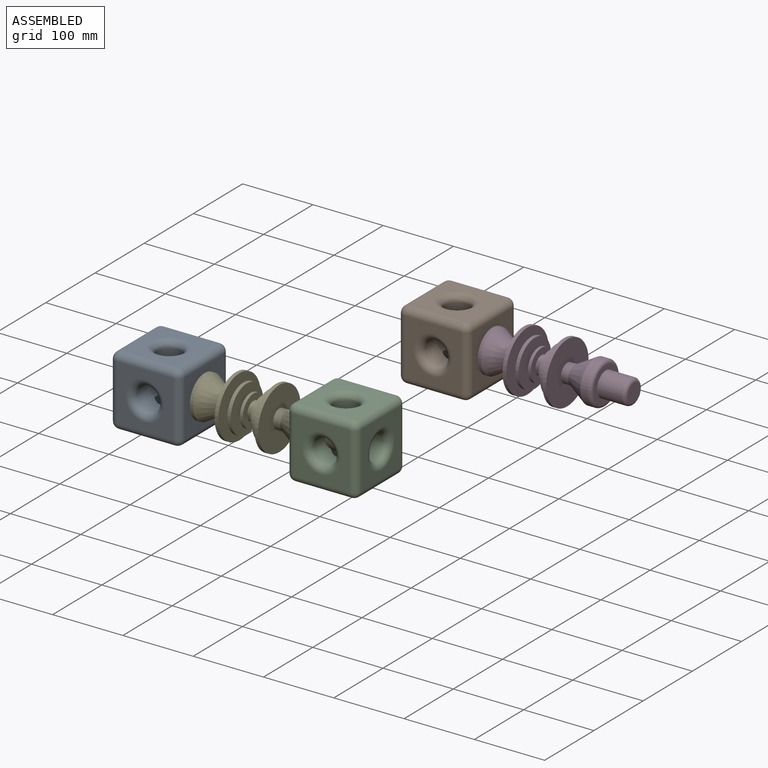
[diagram: assembled view]
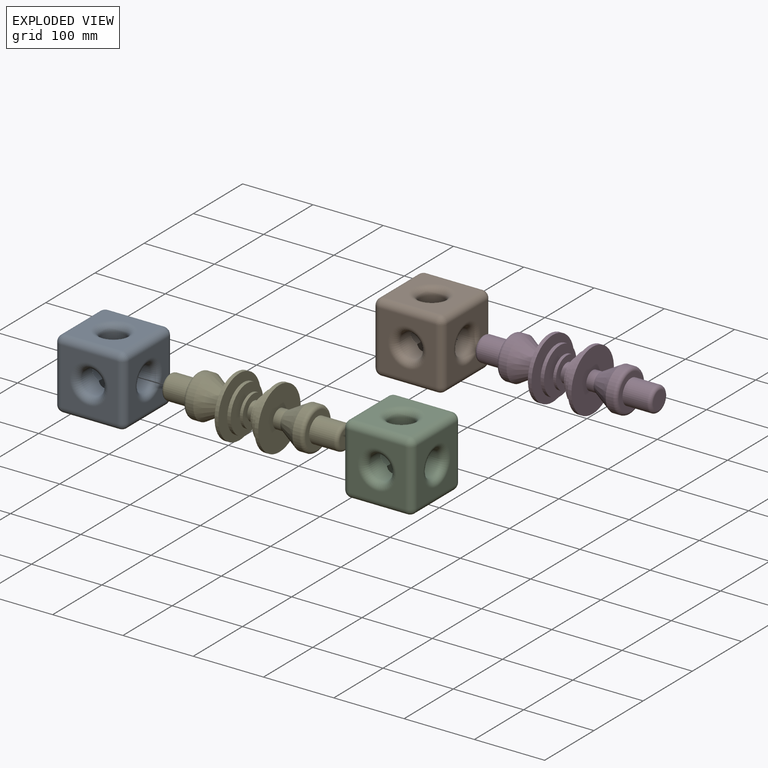
[diagram: exploded view]
GUIDED TOUR — MATED ASSEMBLY (Onshape document a964b16d7d74739e7f7de429, AutoMate assembly a964b16d7d74739e7f7de429_0553d04fbfba188f4434bdd7_2e98afebcec757936299c233_default)

This assembly has 5 components, labeled P0..P4 below (a component is one placed occurrence of a part; the same part can appear more than once), held together by 3 mates. A mate is a constraint between two components; its type names the relative motion it leaves free:
  FASTENED — locks the two components together rigidly (no relative motion).
Axis/direction vectors are unit vectors and 'through' points are millimeter coordinates, both in the assembly's world frame.

MATES
  1. FASTENED "Fastened 1": P2 <-> P4, direction (1.000, 0.000, 0.000) through (-134.48, 2.32, 90.02) mm
  2. FASTENED "Fastened 2": P0 <-> P4, direction (-1.000, 0.000, 0.000) through (-305.66, 2.32, 90.02) mm
  3. FASTENED "Fastened 4": P1 <-> P3, direction (1.000, 0.000, 0.000) through (-232.92, 483.47, -15.53) mm

ASSEMBLY ORDER
  1. P4 — the base component [order heuristic]
  2. P0 [order heuristic]
  3. P1 [order heuristic]
  4. P2 [order heuristic]
  5. P3 [order heuristic]
Order-tag legend:
  [order heuristic] — this assembly is geometrically interlocked (no collision-free removal order exists), so components are listed in mate-graph order; insertion feasibility is not verified.

Of the 5 components, 2 carry the full construction recipe — the FeatureScript program that regenerates the part's solid from scratch; the rest are supplied as boundary geometry only.
Each toured component is shown spotlighted twice — in the assembled view, then in the exploded view, where a leader line traces a displaced component back to its assembled socket (saturated green if recipe-attached, orange if geometry-only; every other component desaturated gray) — followed by its recipe or geometry summary and the mates that hold it.
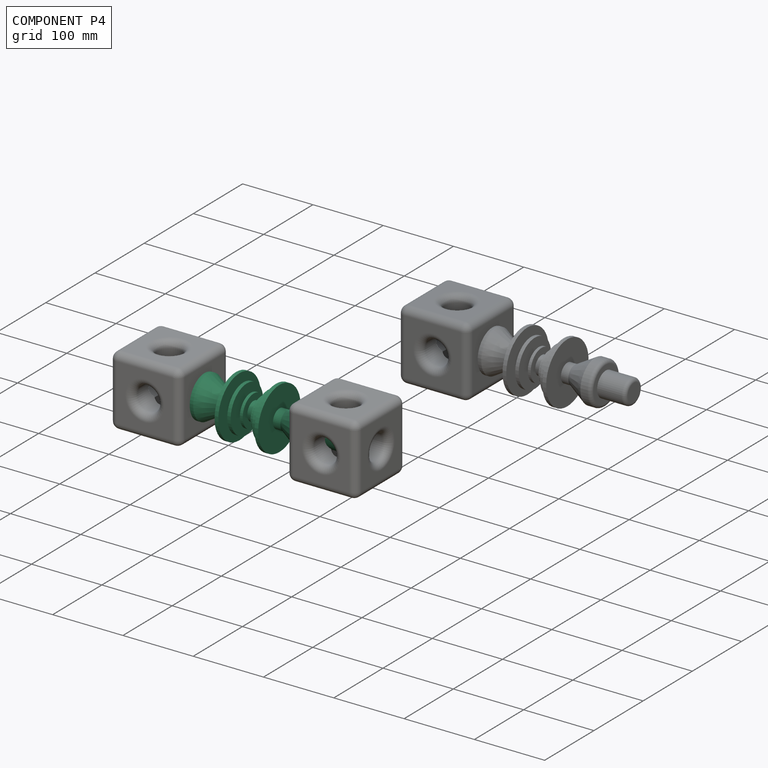
[diagram: component P4 — assembled]
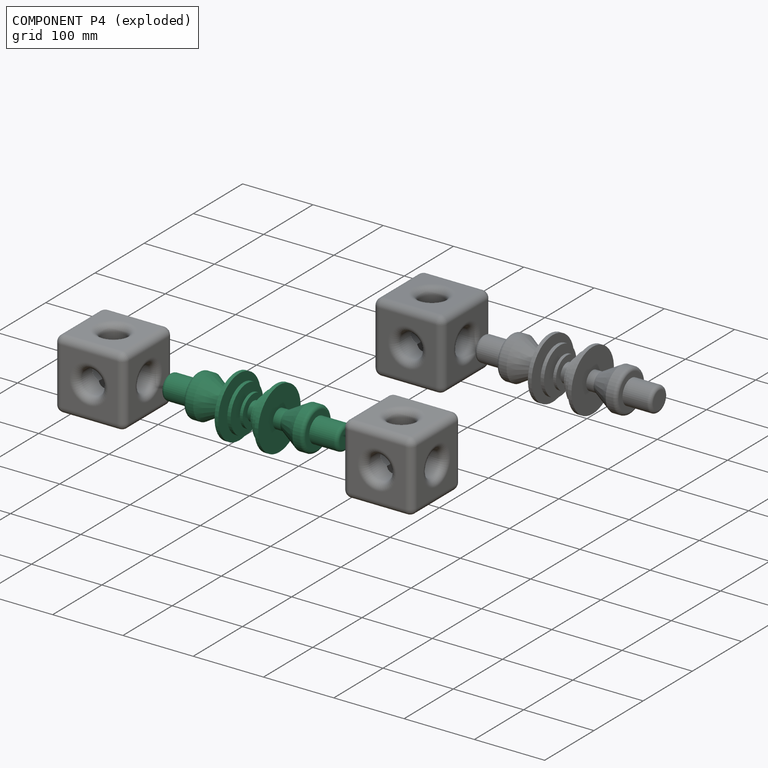
[diagram: component P4 — exploded]
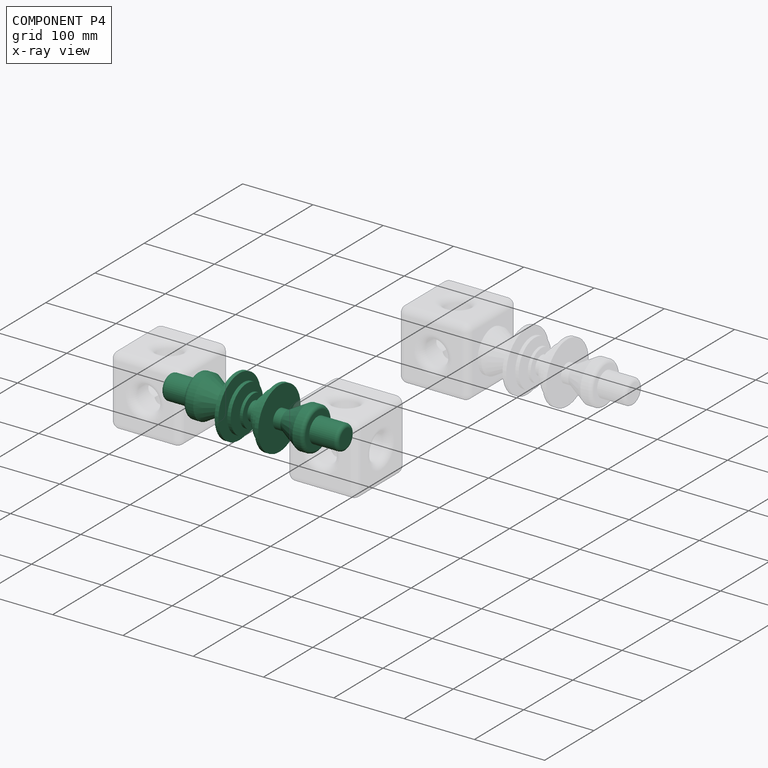
[diagram: component P4 — x-ray view]
COMPONENT P4 — same part as P3 (CADFS 00545659); its construction recipe is shown at P3.
Held by: FASTENED mate "Fastened 1" to P2; FASTENED mate "Fastened 2" to P0.
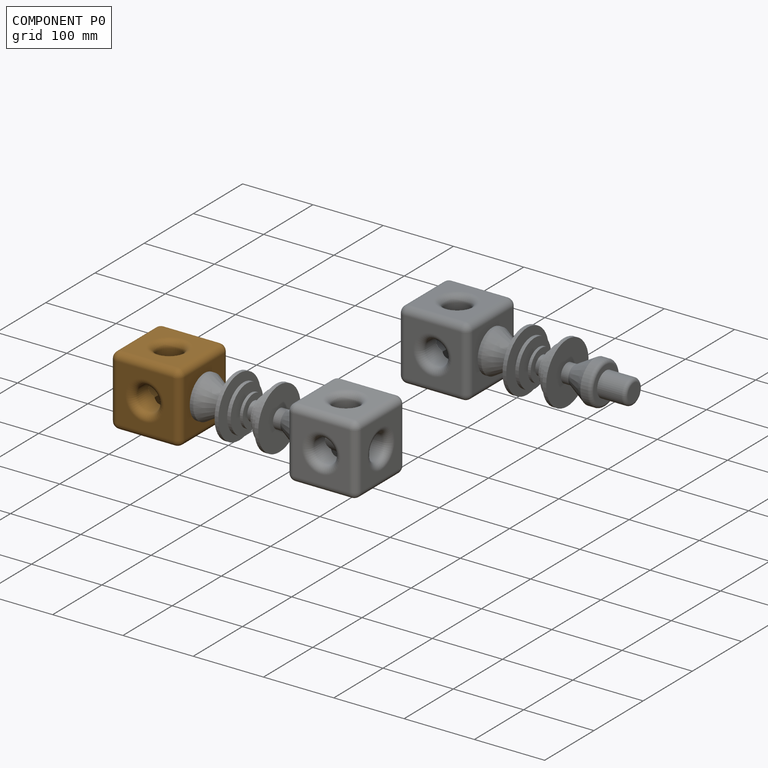
[diagram: component P0 — assembled]
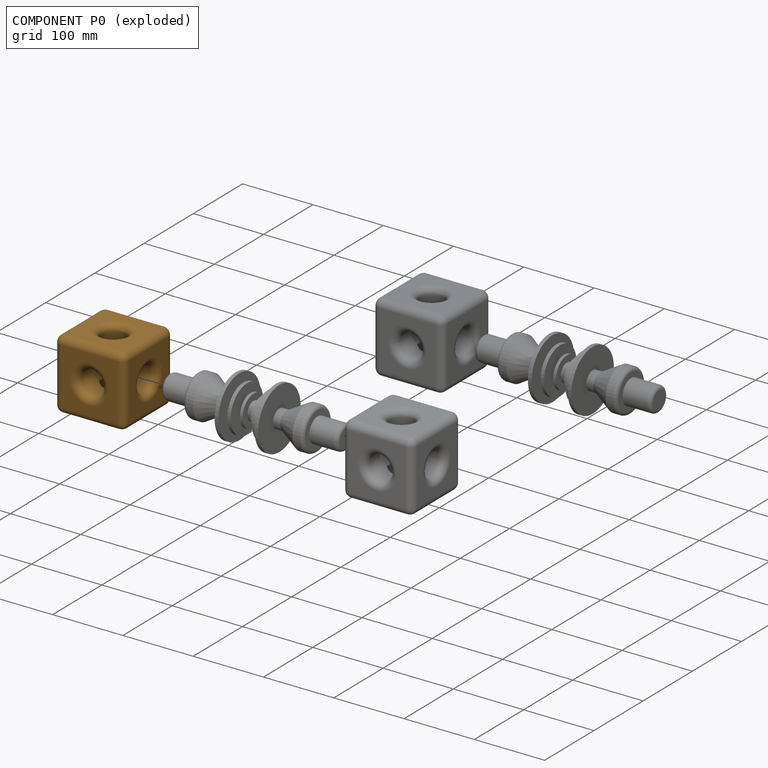
[diagram: component P0 — exploded]
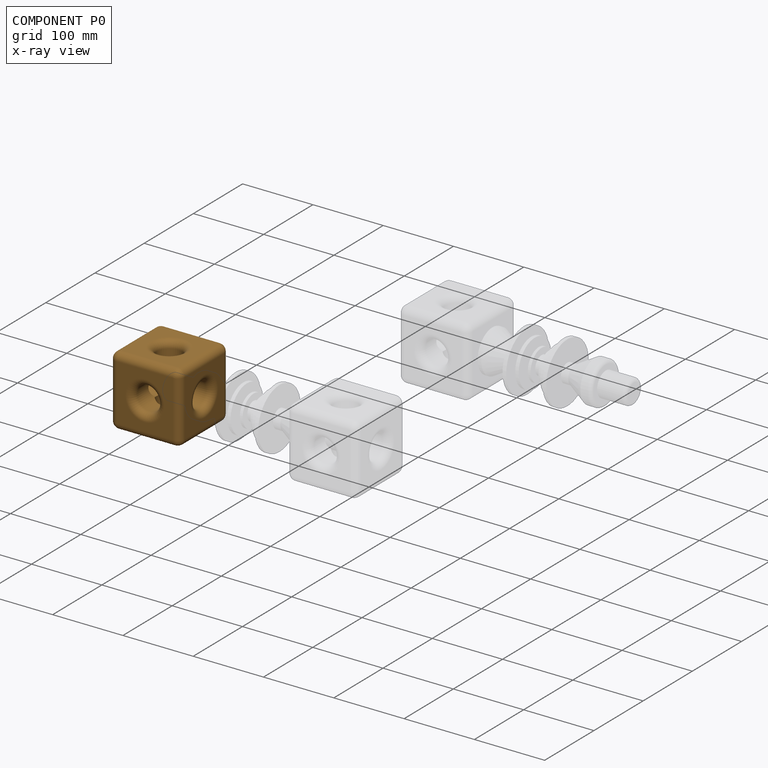
[diagram: component P0 — x-ray view]
COMPONENT P0 — geometry summary (no construction recipe available for this part):
  bounding box: 100.0 x 100.0 x 100.0 mm
  B-rep topology: 1 solid, 38 faces, 186 edges
  volume: 731622 mm^3 (73% of its bounding box)
  symmetry: 4-fold rotationally symmetric about the x axis; 4-fold rotationally symmetric about the y axis; 4-fold rotationally symmetric about the z axis; mirror-symmetric across its x mid-plane, y mid-plane, z mid-plane
Held by: FASTENED mate "Fastened 2" to P4.
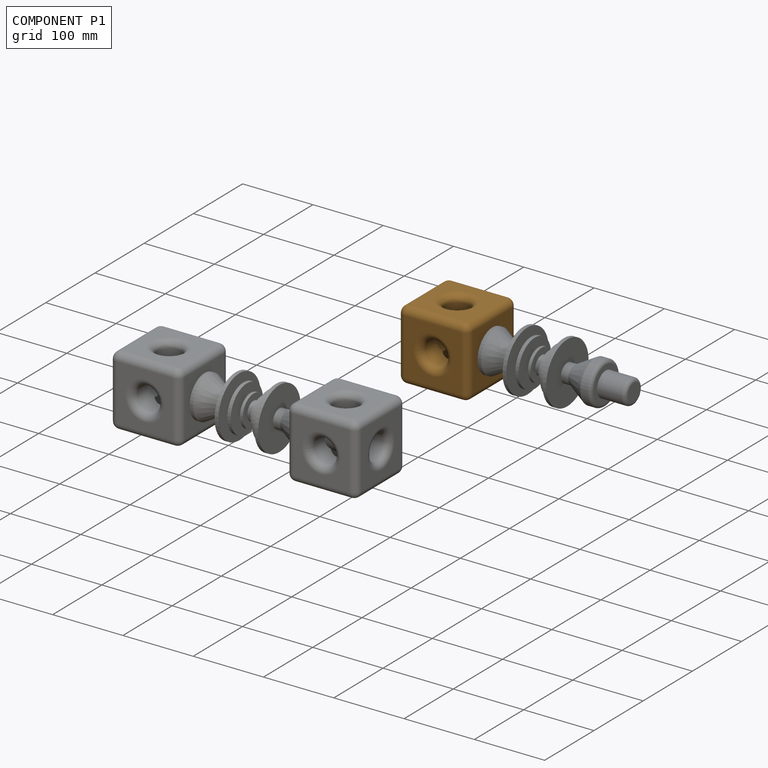
[diagram: component P1 — assembled]
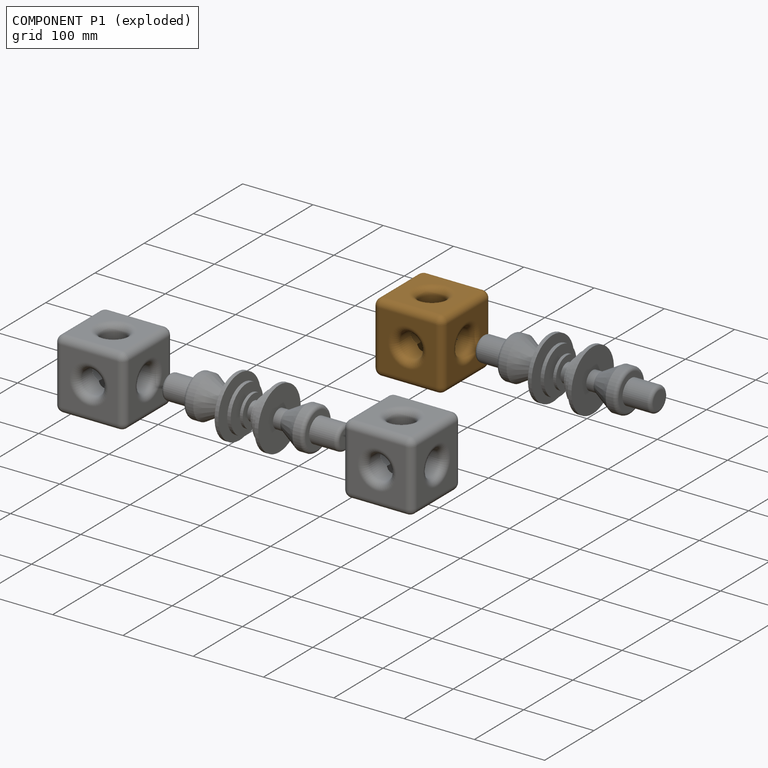
[diagram: component P1 — exploded]
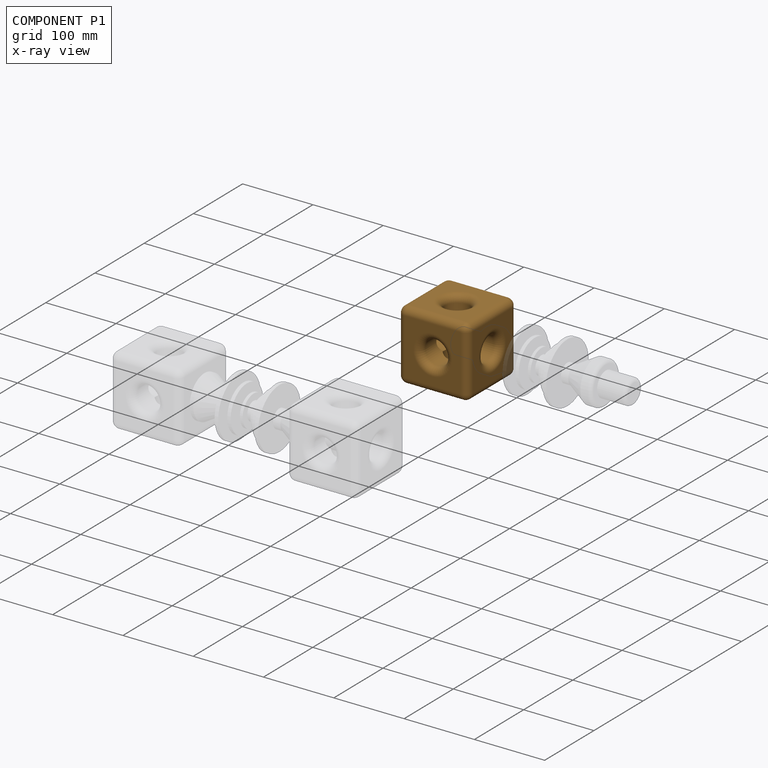
[diagram: component P1 — x-ray view]
COMPONENT P1 — geometry summary (no construction recipe available for this part):
  bounding box: 100.0 x 100.0 x 100.0 mm
  B-rep topology: 1 solid, 38 faces, 186 edges
  volume: 731622 mm^3 (73% of its bounding box)
  symmetry: 4-fold rotationally symmetric about the x axis; 4-fold rotationally symmetric about the y axis; 4-fold rotationally symmetric about the z axis; mirror-symmetric across its x mid-plane, y mid-plane, z mid-plane
Held by: FASTENED mate "Fastened 4" to P3.
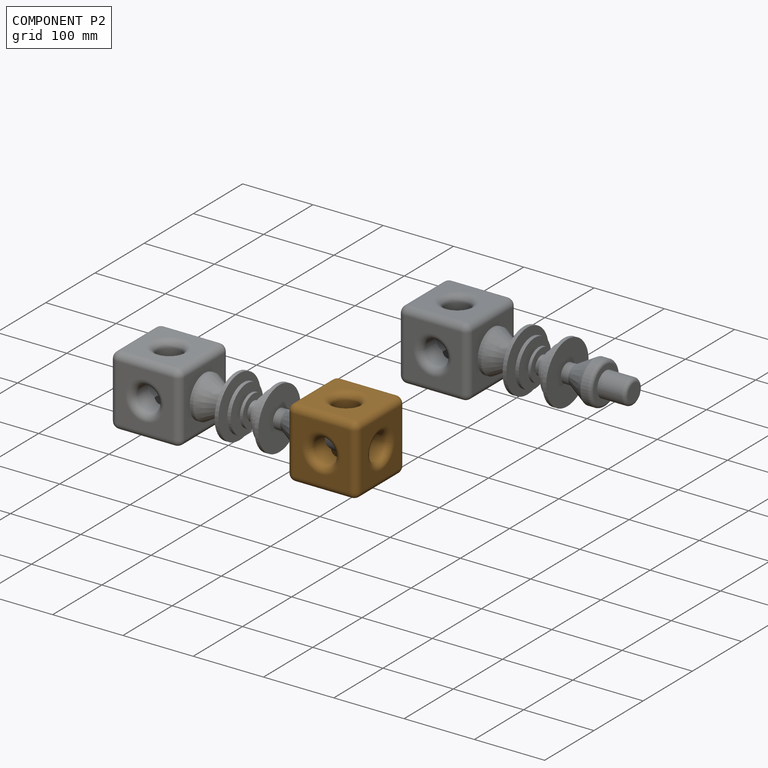
[diagram: component P2 — assembled]
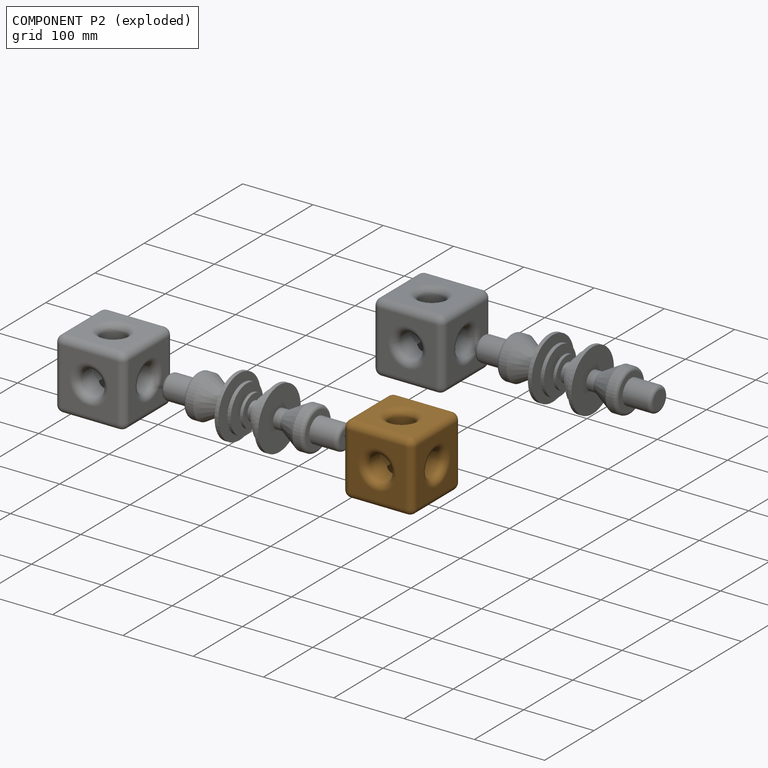
[diagram: component P2 — exploded]
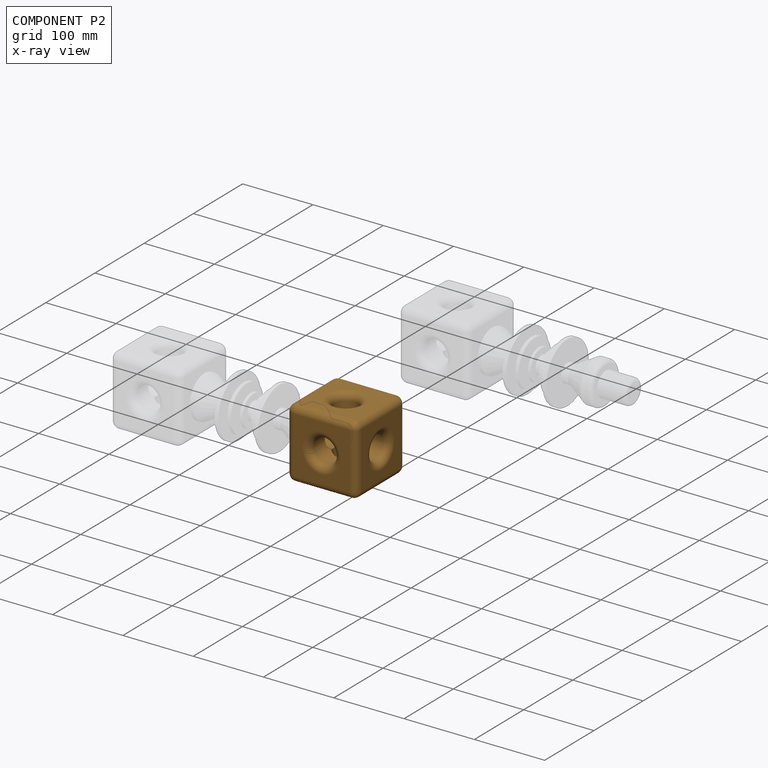
[diagram: component P2 — x-ray view]
COMPONENT P2 — geometry summary (no construction recipe available for this part):
  bounding box: 100.0 x 100.0 x 100.0 mm
  B-rep topology: 1 solid, 38 faces, 186 edges
  volume: 731622 mm^3 (73% of its bounding box)
  symmetry: 4-fold rotationally symmetric about the x axis; 4-fold rotationally symmetric about the y axis; 4-fold rotationally symmetric about the z axis; mirror-symmetric across its x mid-plane, y mid-plane, z mid-plane
Held by: FASTENED mate "Fastened 1" to P4.
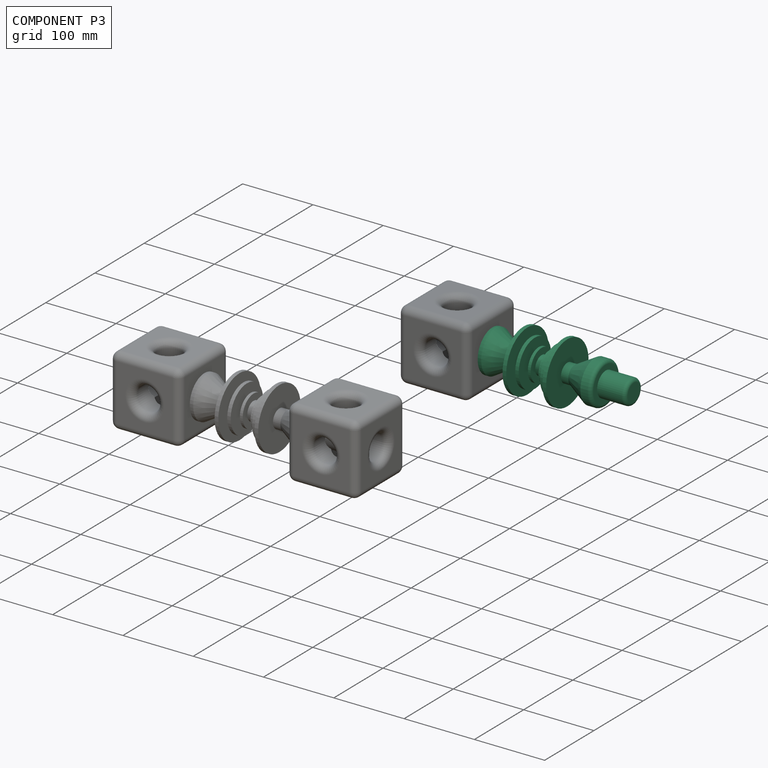
[diagram: component P3 — assembled]
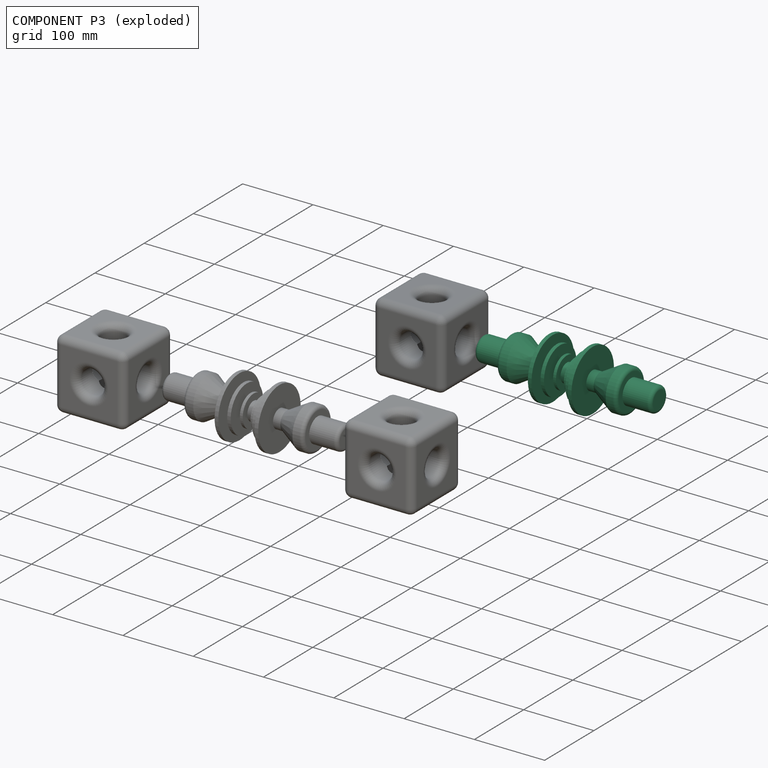
[diagram: component P3 — exploded]
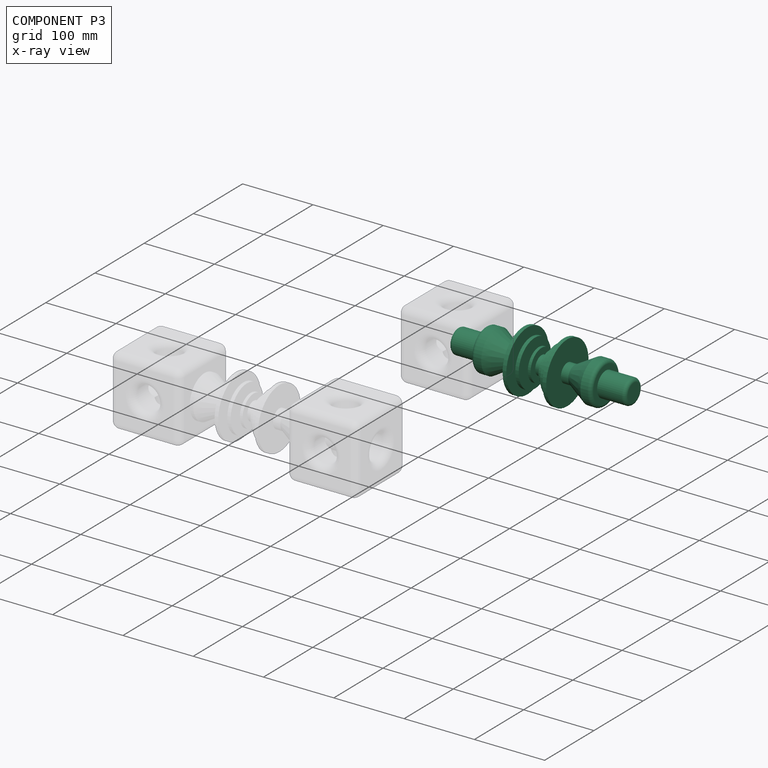
[diagram: component P3 — x-ray view]
COMPONENT P3 — recipe-attached (CADFS 00545659, mesh-verified: the recipe's output STEP matches this component's geometry to below the mesh-comparison resolution (tessellation chordal tolerance ~0.419 mm)).
Held by: FASTENED mate "Fastened 4" to P1.
Construction recipe (FeatureScript — the CAD program that rebuilds this solid; sketch coordinates are in the units given by the * unit suffixes, e.g. mm):

FeatureScript 1511;
import(path : "onshape/std/geometry.fs", version : "1511.0");
import(path : "onshape/std/common.fs", version : "1511.0");
const mm = millimeter;
const VERTEX = EntityType.VERTEX;
const EDGE = EntityType.EDGE;
const FACE = EntityType.FACE;
const BODY = EntityType.BODY;
function v(x, y){return vector(x, y);}
function OD(order){return orderDisambiguation(order);}
function OSD(set){return originalSetDisambiguation(set);}
function TD(topology){return topologyDisambiguation(topology);}
function TDD(query){return trueDependencyDisambiguation(query);}
function sQuery(a, b, c) {return sketchEntityQuery(a, b, c);}

annotation { "Feature Type Name" : "Feature", "Feature Type Description" : "" }
export const myFeature = defineFeature(function(context is Context, id is Id, definition is map)
    precondition{}
    {
        {
            var Q0;
            Q0=qCreatedBy(makeId("Front.planeOp"),FACE);
            var sketch = newSketch(context, id + "F0", { "sketchPlane" : qUnion([Q0])});
            skLineSegment(sketch, "E0", {"start": v(0, 0) * mm, "end": v(0, 13.12) * mm});
            skLineSegment(sketch, "E1", {"start": v(70.55, 30) * mm, "end": v(85.59, 30) * mm});
            skLineSegment(sketch, "E2", {"start": v(85.59, 30) * mm, "end": v(85.59, 17.5) * mm});
            skLineSegment(sketch, "E3", {"start": v(85.59, 17.5) * mm, "end": v(125.59, 17.5) * mm});
            skLineSegment(sketch, "E4", {"start": v(125.59, 17.5) * mm, "end": v(125.59, 0) * mm});
            skLineSegment(sketch, "E5", {"start": v(125.59, 0) * mm, "end": v(0, 0) * mm});
            skLineSegment(sketch, "E6", {"start": v(0, 13.12) * mm, "end": v(5.59, 13.12) * mm});
            skLineSegment(sketch, "E7", {"start": v(5.59, 13.12) * mm, "end": v(5.59, 22.34) * mm});
            skLineSegment(sketch, "E8", {"start": v(5.59, 22.34) * mm, "end": v(9.62, 22.34) * mm});
            skLineSegment(sketch, "E9", {"start": v(9.62, 22.34) * mm, "end": v(9.62, 13.12) * mm});
            skLineSegment(sketch, "E10", {"start": v(9.62, 13.12) * mm, "end": v(15.2, 13.12) * mm});
            skLineSegment(sketch, "E11", {"start": v(15.2, 13.12) * mm, "end": v(15.2, 32.89) * mm});
            skLineSegment(sketch, "E12", {"start": v(15.2, 32.89) * mm, "end": v(20.17, 32.89) * mm});
            skLineSegment(sketch, "E13", {"start": v(20.17, 32.89) * mm, "end": v(20.17, 13.12) * mm});
            skLineSegment(sketch, "E14", {"start": v(20.17, 13.12) * mm, "end": v(25.75, 13.12) * mm});
            skLineSegment(sketch, "E15", {"start": v(25.75, 13.12) * mm, "end": v(25.75, 43.13) * mm});
            skLineSegment(sketch, "E16", {"start": v(25.75, 43.13) * mm, "end": v(31.03, 43.13) * mm});
            skLineSegment(sketch, "E17", {"start": v(31.03, 43.13) * mm, "end": v(31.03, 13.12) * mm});
            skLineSegment(sketch, "E18", {"start": v(31.03, 13.12) * mm, "end": v(41.58, 13.12) * mm});
            skLineSegment(sketch, "E19", {"start": v(41.58, 13.12) * mm, "end": v(70.55, 30) * mm});
            skSolve(sketch);
        }
        {
            var Q0;
            Q0=makeQuery(id+"F0.imprint","IMPRINT",FACE,{"disambiguationData":[TD([[makeQuery(id+"F0.imprint","IMPRINT",EDGE,{"derivedFrom":sQuery(id+"F0.wireOp",EDGE,"E0")}),-1.0]])]});
            var Q1;
            Q1=sQuery(id+"F0.wireOp",EDGE,"E5");
            revolve(context, id + "F1", {"entities" : qUnion([Q0]), "axis" : qUnion([Q1]), "revolveType" : RevolveType.FULL});
        }
        {
            var Q0;
            Q0=makeQuery(id+"F1.opRevolve","SWEPT_BODY",BODY,{"disambiguationData":[OSD([sQuery(id+"F0.wireOp",EDGE,"E0"),sQuery(id+"F0.wireOp",EDGE,"a8409ff0-ee09-4b80-9a28-8479c8c301c4"),sQuery(id+"F0.wireOp",EDGE,"E1"),sQuery(id+"F0.wireOp",EDGE,"E2"),sQuery(id+"F0.wireOp",EDGE,"E3"),sQuery(id+"F0.wireOp",EDGE,"E4"),sQuery(id+"F0.wireOp",EDGE,"E5")])]});
            var Q1;
            Q1=makeQuery(id+"F1.opRevolve","SWEPT_FACE",FACE,{"disambiguationData":[OSD([sQuery(id+"F0.wireOp",EDGE,"E0")])]});
            mirror(context, id + "F2", {"operationType" : NewBodyOperationType.ADD, "entities" : qUnion([Q0]), "mirrorPlane" : qUnion([Q1])});
        }
        {
            var Q0;
            Q0=makeQuery(id+"F2.opPattern","COPY",EDGE,{"derivedFrom":makeQuery(id+"F1.opRevolve","SWEPT_EDGE",EDGE,{"disambiguationData":[OSD([sQuery(id+"F0.wireOp",EDGE,"E1"),sQuery(id+"F0.wireOp",EDGE,"E2")])]}),"instanceName":"1"});
            var Q1;
            Q1=makeQuery(id+"F1.opRevolve","SWEPT_EDGE",EDGE,{"disambiguationData":[OSD([sQuery(id+"F0.wireOp",EDGE,"E1"),sQuery(id+"F0.wireOp",EDGE,"E2")])]});
            var Q2;
            Q2=makeQuery(id+"F1.opRevolve","SWEPT_EDGE",EDGE,{"disambiguationData":[OSD([sQuery(id+"F0.wireOp",EDGE,"E3"),sQuery(id+"F0.wireOp",EDGE,"E4")])]});
            var Q3;
            Q3=makeQuery(id+"F2.opPattern","COPY",EDGE,{"derivedFrom":makeQuery(id+"F1.opRevolve","SWEPT_EDGE",EDGE,{"disambiguationData":[OSD([sQuery(id+"F0.wireOp",EDGE,"E3"),sQuery(id+"F0.wireOp",EDGE,"E4")])]}),"instanceName":"1"});
            fillet(context, id + "F3", {"entities" : qUnion([Q0, Q1, Q2, Q3]), "radius" : 5 * mm, "tangentPropagation" : true, "allowEdgeOverflow" : false});
        }
    });
PROVENANCE & LICENSES
Assembly (occurrences, transforms, mates, per-part STEP geometry): AutoMate dataset, Zenodo record 7776208, CC0.
Construction recipes: CADFS (HuggingFace VladPyatov/CADFS, CC-BY-4.0, layered over the ABC dataset), FeatureScript reconstruction programs keyed by ABC model id.
Join: ABC meta listings map ABC model id -> Onshape documentId; within a shared document, parts are matched by geometric signature (bounding-box dims + volume at 0.1% relative tolerance, exact B-rep face/solid counts).
Verification: 2 of this assembly's 5 components carry a recipe attachment, and every attachment is mesh-verified: the CADFS STEP and the AutoMate member STEP were compared as meshes in their shared local frame (symmetric sampled-point-to-mesh distance); worst across the 2 attachments: below the mesh-comparison resolution (tessellation chordal tolerance ~0.419 mm) on a 279 mm part.
Renders: orthographic iso camera (az 35 / el 25); the floor grid conveys scale (grid pitch printed in each image; no ruler). In the exploded view each component is displaced by its stored offset vector: the offsets alone carry the explosion direction (mate normal/axis signs are not orientation cues and do not encode it), and separation distances are assigned per mate-chain, not proportionally to assembly-order depth.
